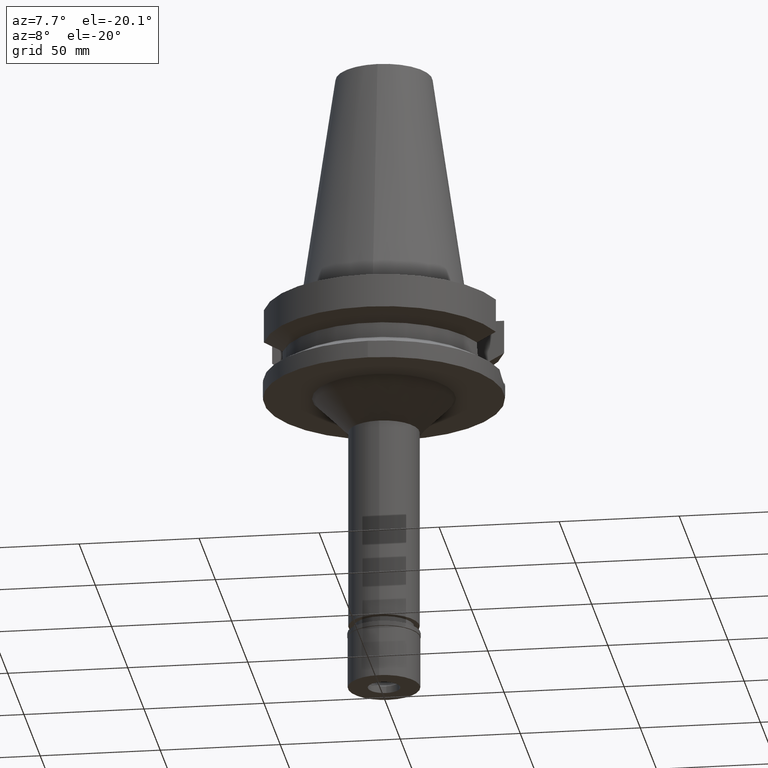
[diagram: clean part render]
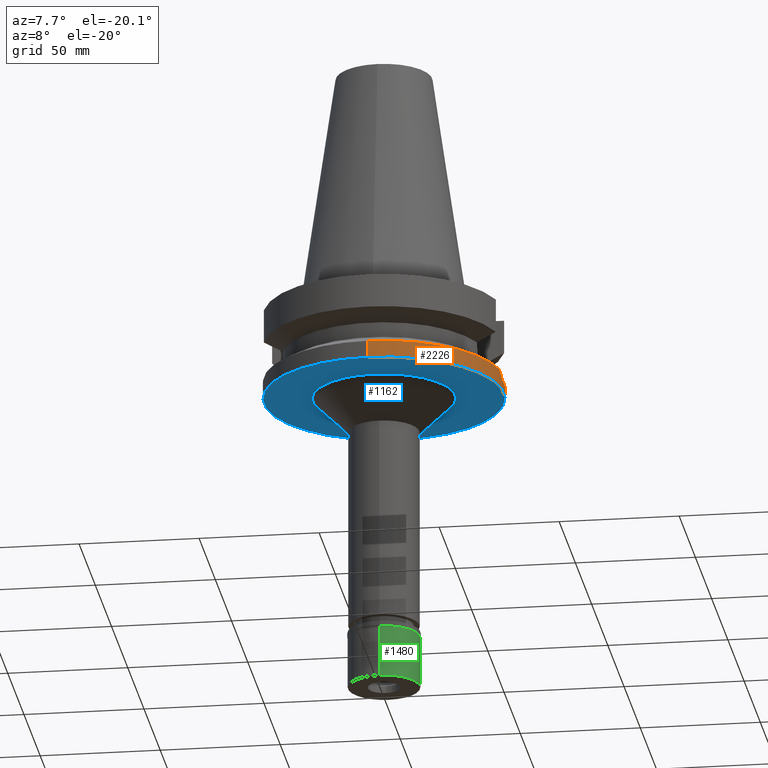
[diagram: same view with three faces highlighted in distinct colors, each labeled with its STEP entity id]
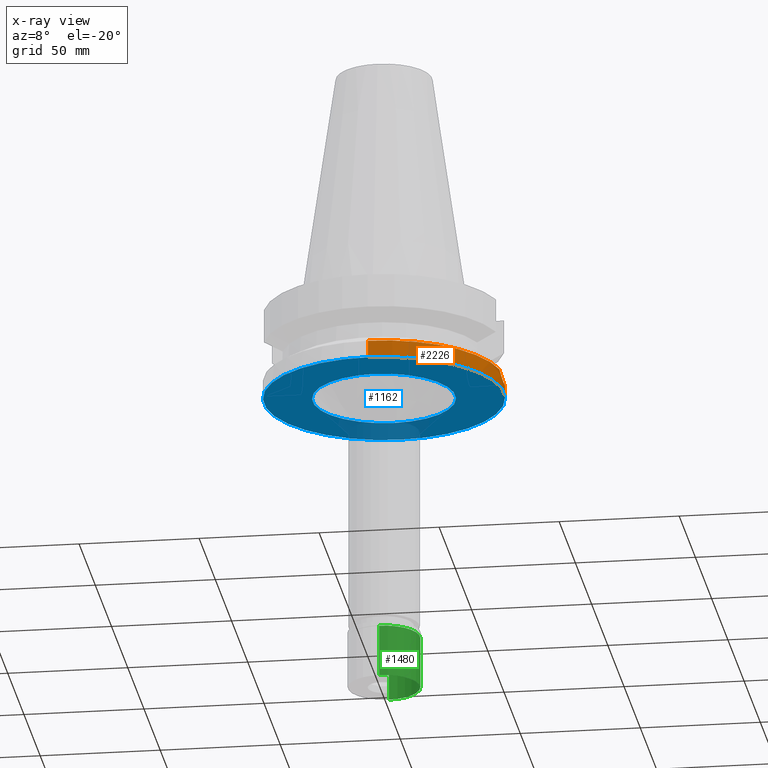
[diagram: x-ray of the same camera — body ghosted, the three highlighted faces saturated]
A machine part, auxiliary view with three faces highlighted in distinct colors.
The next image is the same camera in x-ray (body ghosted, the three faces saturated) — at least one of them is partly hidden behind the body in this view.
Their STEP definitions:

[orange] entity #2226 — the highlighted cylindrical surface (partial cylindrical patch) has radius 50 mm, axis along (0, 0, -1).
#62 = CARTESIAN_POINT ( 'NONE',  ( 49.73403571958615998, -5.148397096495456182, -32.92466732340630386 ) ) ;
#69 = ORIENTED_EDGE ( 'NONE', *, *, #1475, .F. ) ;
#82 = CARTESIAN_POINT ( 'NONE',  ( 49.49360748622444817, -7.117022365926930938, -31.87769826629265779 ) ) ;
#99 = CARTESIAN_POINT ( 'NONE',  ( 49.78971523552871048, -4.580896940923099514, -33.15574469000517865 ) ) ;
#111 = CARTESIAN_POINT ( 'NONE',  ( 0.0000000000000000000, -50.00000000000000000, -30.73730776426999967 ) ) ;
#122 = CARTESIAN_POINT ( 'NONE',  ( 49.98260905406999655, 1.500665618819546410, -33.93573820484640891 ) ) ;
#133 = AXIS2_PLACEMENT_3D ( 'NONE', #1838, #641, #875 ) ;
#154 = CARTESIAN_POINT ( 'NONE',  ( 49.84837068522748638, 3.895670753477376902, -33.39815263642847043 ) ) ;
#194 = VERTEX_POINT ( 'NONE', #2281 ) ;
#196 = B_SPLINE_CURVE_WITH_KNOTS ( 'NONE', 3,
 ( #1277, #1973, #82, #2467, #2031, #1059, #62, #781, #2530, #2021, #338, #3002, #99, #351, #1753, #571, #2001, #826, #814, #1799 ),
 .UNSPECIFIED., .F., .F.,
 ( 4, 2, 2, 2, 1, 1, 1, 1, 2, 2, 2, 4 ),
 ( 0.0000000000000000000, 0.2500000000000019429, 0.3750000000000028866, 0.4375000000000027200, 0.4687500000000024980, 0.4843750000000030531, 0.4921875000000038303, 0.4960937500000040523, 0.4980468750000043854, 0.5000000000000046629, 0.7500000000000023315, 1.000000000000000000 ),
 .UNSPECIFIED. ) ;
#244 = VERTEX_POINT ( 'NONE', #2814 ) ;
#323 = VERTEX_POINT ( 'NONE', #3101 ) ;
#338 = CARTESIAN_POINT ( 'NONE',  ( 49.78562820799414368, -4.625197376536470451, -33.13877319685349221 ) ) ;
#351 = CARTESIAN_POINT ( 'NONE',  ( 49.79052572488830464, -4.572062755272113144, -33.15911172846682575 ) ) ;
#391 = FACE_OUTER_BOUND ( 'NONE', #2268, .T. ) ;
#400 = CARTESIAN_POINT ( 'NONE',  ( 49.93043543702999898, 2.648726358764227129, -33.73005955319694493 ) ) ;
#434 = CIRCLE ( 'NONE', #793, 50.00000000000000000 ) ;
#455 = DIRECTION ( 'NONE',  ( 0.0000000000000000000, 1.000000000000000000, 0.0000000000000000000 ) ) ;
#492 = CARTESIAN_POINT ( 'NONE',  ( 0.0000000000000000000, 50.00000000000000000, -30.73730776426999967 ) ) ;
#571 = CARTESIAN_POINT ( 'NONE',  ( 49.86088866506666051, -3.802344464100822385, -33.45151161015256491 ) ) ;
#584 = VERTEX_POINT ( 'NONE', #111 ) ;
#592 = CIRCLE ( 'NONE', #133, 50.00000000000000000 ) ;
#595 = DIRECTION ( 'NONE',  ( 0.0000000000000000000, -1.000000000000000000, 0.0000000000000000000 ) ) ;
#641 = DIRECTION ( 'NONE',  ( 0.0000000000000000000, 0.0000000000000000000, 1.000000000000000000 ) ) ;
#659 = DIRECTION ( 'NONE',  ( 0.0000000000000000000, 0.0000000000000000000, -1.000000000000000000 ) ) ;
#714 = CARTESIAN_POINT ( 'NONE',  ( 50.00000025974999573, 1.773533494524999800E-14, -34.00000114470000057 ) ) ;
#746 = CARTESIAN_POINT ( 'NONE',  ( 49.49360244391019137, 7.117060693570753216, -31.87766899436991608 ) ) ;
#781 = CARTESIAN_POINT ( 'NONE',  ( 49.75680721493095149, -4.924372200038003022, -33.01927248172847840 ) ) ;
#793 = AXIS2_PLACEMENT_3D ( 'NONE', #2084, #659, #455 ) ;
#814 = CARTESIAN_POINT ( 'NONE',  ( 50.00000025974999573, -0.7410656247012755715, -33.99999999999999289 ) ) ;
#826 = CARTESIAN_POINT ( 'NONE',  ( 49.98261131041458327, -1.500624885913280915, -33.93573978233207100 ) ) ;
#853 = CYLINDRICAL_SURFACE ( 'NONE', #2573, 50.00000000000000000 ) ;
#858 = CARTESIAN_POINT ( 'NONE',  ( 49.26250064874000145, 8.556052234130000045, -30.73730776426999967 ) ) ;
#875 = DIRECTION ( 'NONE',  ( 0.0000000000000000000, -1.000000000000000000, 0.0000000000000000000 ) ) ;
#888 = CARTESIAN_POINT ( 'NONE',  ( 49.79885500147747024, 4.480269389595494367, -33.19370440293435109 ) ) ;
#906 = CARTESIAN_POINT ( 'NONE',  ( 50.00000025974999573, 0.7410749816402011358, -34.00000000000000000 ) ) ;
#935 = CARTESIAN_POINT ( 'NONE',  ( 0.0000000000000000000, -50.00000000000000000, -38.00000000000000000 ) ) ;
#1002 = EDGE_CURVE ( 'NONE', #244, #3093, #434, .T. ) ;
#1046 = LINE ( 'NONE', #2010, #1395 ) ;
#1059 = CARTESIAN_POINT ( 'NONE',  ( 49.71771244287386793, -5.301720186609951035, -32.85659238541509808 ) ) ;
#1151 = DIRECTION ( 'NONE',  ( 0.0000000000000000000, 0.0000000000000000000, -1.000000000000000000 ) ) ;
#1223 = ORIENTED_EDGE ( 'NONE', *, *, #1581, .T. ) ;
#1277 = CARTESIAN_POINT ( 'NONE',  ( 49.26250064874000145, -8.556052234130000045, -30.73730776426999967 ) ) ;
#1363 = CARTESIAN_POINT ( 'NONE',  ( 49.90869642993001065, 3.032807478869417039, -33.64331436781977658 ) ) ;
#1395 = VECTOR ( 'NONE', #2848, 1000.000000000000000 ) ;
#1404 = CARTESIAN_POINT ( 'NONE',  ( 49.26250064874000145, 8.556052234130000045, -30.73730776426999967 ) ) ;
#1456 = CARTESIAN_POINT ( 'NONE',  ( 49.73972721059514157, 5.127761864558977756, -32.94800215649712527 ) ) ;
#1458 = DIRECTION ( 'NONE',  ( 0.0000000000000000000, 2.152361642122000014E-14, -1.000000000000000000 ) ) ;
#1475 = EDGE_CURVE ( 'NONE', #244, #323, #2674, .T. ) ;
#1519 = ORIENTED_EDGE ( 'NONE', *, *, #1679, .T. ) ;
#1581 = EDGE_CURVE ( 'NONE', #584, #2718, #1046, .T. ) ;
#1640 = EDGE_CURVE ( 'NONE', #2718, #323, #592, .T. ) ;
#1679 = EDGE_CURVE ( 'NONE', #194, #584, #2222, .T. ) ;
#1718 = AXIS2_PLACEMENT_3D ( 'NONE', #2829, #1151, #2335 ) ;
#1753 = CARTESIAN_POINT ( 'NONE',  ( 49.79078946305824616, -4.569185635567651893, -33.16020745300446038 ) ) ;
#1799 = CARTESIAN_POINT ( 'NONE',  ( 50.00000025974999573, 1.773533494524999800E-14, -34.00000114470000057 ) ) ;
#1830 = CARTESIAN_POINT ( 'NONE',  ( 49.82078931996939275, 4.230072290458671169, -33.28453423722757520 ) ) ;
#1838 = CARTESIAN_POINT ( 'NONE',  ( 0.0000000000000000000, 2.628581889689999696E-14, -38.00000000000000000 ) ) ;
#1857 = DIRECTION ( 'NONE',  ( 0.0000000000000000000, 0.0000000000000000000, -1.000000000000000000 ) ) ;
#1866 = CARTESIAN_POINT ( 'NONE',  ( 49.79509525718312091, 4.521911686861478152, -33.17809616899173619 ) ) ;
#1939 = CARTESIAN_POINT ( 'NONE',  ( 49.38719044869513652, 7.838135701716594461, -31.37800184670784631 ) ) ;
#1973 = CARTESIAN_POINT ( 'NONE',  ( 49.38719230600825227, -7.838125008021568974, -31.37801139013916796 ) ) ;
#2001 = CARTESIAN_POINT ( 'NONE',  ( 49.91305551307291211, -3.031270826377053140, -33.66153124149426645 ) ) ;
#2006 = EDGE_CURVE ( 'NONE', #194, #2726, #196, .T. ) ;
#2010 = CARTESIAN_POINT ( 'NONE',  ( 0.0000000000000000000, -50.00000000000000000, -30.73730776426999967 ) ) ;
#2021 = CARTESIAN_POINT ( 'NONE',  ( 49.77979861140840256, -4.687619708070342561, -33.11458520032999076 ) ) ;
#2031 = CARTESIAN_POINT ( 'NONE',  ( 49.66531577328977676, -5.772453008276097641, -32.63570655766154260 ) ) ;
#2084 = CARTESIAN_POINT ( 'NONE',  ( 0.0000000000000000000, 0.0000000000000000000, -30.73730776426999967 ) ) ;
#2089 = CARTESIAN_POINT ( 'NONE',  ( 49.86956621715001603, 3.608177968357706877, -33.48463145063210789 ) ) ;
#2096 = ORIENTED_EDGE ( 'NONE', *, *, #2006, .F. ) ;
#2108 = VECTOR ( 'NONE', #1458, 1000.000000000000000 ) ;
#2128 = B_SPLINE_CURVE_WITH_KNOTS ( 'NONE', 3,
 ( #3096, #906, #122, #400, #1363, #2089, #154, #1830, #3076, #888, #1866, #2845, #2636, #2956, #1456, #2155, #746, #1939, #1404 ),
 .UNSPECIFIED., .F., .F.,
 ( 4, 2, 2, 1, 1, 1, 1, 1, 2, 2, 2, 4 ),
 ( 0.0000000000000000000, 0.2499999999999918954, 0.3749999999999877875, 0.4374999999999857891, 0.4687499999999846234, 0.4843749999999845124, 0.4921874999999845124, 0.4960937499999848455, 0.4980468749999847344, 0.4999999999999846789, 0.7499999999999923395, 1.000000000000000000 ),
 .UNSPECIFIED. ) ;
#2155 = CARTESIAN_POINT ( 'NONE',  ( 49.66987082486018323, 5.762061220135041850, -32.66234491596527789 ) ) ;
#2222 = CIRCLE ( 'NONE', #1718, 50.00000000000000000 ) ;
#2226 = ADVANCED_FACE ( 'NONE', ( #391 ), #853, .T. ) ;
#2244 = ORIENTED_EDGE ( 'NONE', *, *, #1640, .T. ) ;
#2268 = EDGE_LOOP ( 'NONE', ( #1519, #1223, #2244, #69, #3005, #3084, #2096 ) ) ;
#2281 = CARTESIAN_POINT ( 'NONE',  ( 49.26250064874000145, -8.556052234130000045, -30.73730776426999967 ) ) ;
#2335 = DIRECTION ( 'NONE',  ( 0.9852500129747439050, -0.1711210446826074982, 0.0000000000000000000 ) ) ;
#2467 = CARTESIAN_POINT ( 'NONE',  ( 49.62581554097071290, -6.100699782661163084, -32.46623685348927069 ) ) ;
#2530 = CARTESIAN_POINT ( 'NONE',  ( 49.76776460767242583, -4.813848196824465298, -33.06469792030519272 ) ) ;
#2573 = AXIS2_PLACEMENT_3D ( 'NONE', #2780, #1857, #595 ) ;
#2636 = CARTESIAN_POINT ( 'NONE',  ( 49.79239168047002551, 4.551645640521863712, -33.16686574697492063 ) ) ;
#2674 = LINE ( 'NONE', #492, #2108 ) ;
#2718 = VERTEX_POINT ( 'NONE', #935 ) ;
#2726 = VERTEX_POINT ( 'NONE', #714 ) ;
#2780 = CARTESIAN_POINT ( 'NONE',  ( 0.0000000000000000000, 2.628581889689999696E-14, 114.6400000000000006 ) ) ;
#2814 = CARTESIAN_POINT ( 'NONE',  ( 0.0000000000000000000, 50.00000000000000000, -30.73730776426999967 ) ) ;
#2829 = CARTESIAN_POINT ( 'NONE',  ( 0.0000000000000000000, 0.0000000000000000000, -30.73730776426999967 ) ) ;
#2845 = CARTESIAN_POINT ( 'NONE',  ( 49.79347438492522571, 4.539752812153897921, -33.17136368396872115 ) ) ;
#2848 = DIRECTION ( 'NONE',  ( 0.0000000000000000000, -2.250196262218000018E-14, -1.000000000000000000 ) ) ;
#2956 = CARTESIAN_POINT ( 'NONE',  ( 49.79170874925402757, 4.559128567793260700, -33.16402800634461556 ) ) ;
#3002 = CARTESIAN_POINT ( 'NONE',  ( 49.78849615496642400, -4.594160770999257792, -33.15068097424745019 ) ) ;
#3005 = ORIENTED_EDGE ( 'NONE', *, *, #1002, .T. ) ;
#3076 = CARTESIAN_POINT ( 'NONE',  ( 49.80628532616985638, 4.396934166566434321, -33.22451764729858326 ) ) ;
#3084 = ORIENTED_EDGE ( 'NONE', *, *, #3108, .F. ) ;
#3093 = VERTEX_POINT ( 'NONE', #858 ) ;
#3096 = CARTESIAN_POINT ( 'NONE',  ( 50.00000025974999573, 1.773533494524999800E-14, -34.00000114470000057 ) ) ;
#3101 = CARTESIAN_POINT ( 'NONE',  ( 0.0000000000000000000, 50.00000000000000000, -38.00000000000000000 ) ) ;
#3108 = EDGE_CURVE ( 'NONE', #2726, #3093, #2128, .T. ) ;

[blue] entity #1162 — the highlighted planar face has unit normal (0, 0, -1).
#16 = CARTESIAN_POINT ( 'NONE',  ( 0.0000000000000000000, 0.0000000000000000000, -38.00000000000000000 ) ) ;
#46 = ORIENTED_EDGE ( 'NONE', *, *, #1526, .F. ) ;
#130 = AXIS2_PLACEMENT_3D ( 'NONE', #2398, #499, #1717 ) ;
#133 = AXIS2_PLACEMENT_3D ( 'NONE', #1838, #641, #875 ) ;
#177 = AXIS2_PLACEMENT_3D ( 'NONE', #16, #1419, #1660 ) ;
#291 = DIRECTION ( 'NONE',  ( 0.0000000000000000000, 0.0000000000000000000, -1.000000000000000000 ) ) ;
#323 = VERTEX_POINT ( 'NONE', #3101 ) ;
#499 = DIRECTION ( 'NONE',  ( 0.0000000000000000000, 0.0000000000000000000, 1.000000000000000000 ) ) ;
#592 = CIRCLE ( 'NONE', #133, 50.00000000000000000 ) ;
#641 = DIRECTION ( 'NONE',  ( 0.0000000000000000000, 0.0000000000000000000, 1.000000000000000000 ) ) ;
#756 = FACE_OUTER_BOUND ( 'NONE', #1382, .T. ) ;
#803 = ORIENTED_EDGE ( 'NONE', *, *, #1640, .F. ) ;
#875 = DIRECTION ( 'NONE',  ( 0.0000000000000000000, -1.000000000000000000, 0.0000000000000000000 ) ) ;
#891 = VERTEX_POINT ( 'NONE', #1661 ) ;
#895 = ORIENTED_EDGE ( 'NONE', *, *, #1308, .F. ) ;
#935 = CARTESIAN_POINT ( 'NONE',  ( 0.0000000000000000000, -50.00000000000000000, -38.00000000000000000 ) ) ;
#960 = FACE_BOUND ( 'NONE', #2283, .T. ) ;
#1162 = ADVANCED_FACE ( 'NONE', ( #756, #960 ), #1269, .T. ) ;
#1269 = PLANE ( 'NONE',  #1658 ) ;
#1308 = EDGE_CURVE ( 'NONE', #891, #1899, #2719, .T. ) ;
#1309 = AXIS2_PLACEMENT_3D ( 'NONE', #1406, #1644, #2318 ) ;
#1382 = EDGE_LOOP ( 'NONE', ( #46, #803 ) ) ;
#1406 = CARTESIAN_POINT ( 'NONE',  ( 0.0000000000000000000, 0.0000000000000000000, -38.00000000000000000 ) ) ;
#1419 = DIRECTION ( 'NONE',  ( 0.0000000000000000000, 0.0000000000000000000, -1.000000000000000000 ) ) ;
#1526 = EDGE_CURVE ( 'NONE', #323, #2718, #2941, .T. ) ;
#1640 = EDGE_CURVE ( 'NONE', #2718, #323, #592, .T. ) ;
#1644 = DIRECTION ( 'NONE',  ( 0.0000000000000000000, 0.0000000000000000000, -1.000000000000000000 ) ) ;
#1658 = AXIS2_PLACEMENT_3D ( 'NONE', #2476, #291, #1922 ) ;
#1660 = DIRECTION ( 'NONE',  ( 0.0000000000000000000, -1.000000000000000000, 0.0000000000000000000 ) ) ;
#1661 = CARTESIAN_POINT ( 'NONE',  ( 0.0000000000000000000, -29.75000000000000000, -38.00000000000000000 ) ) ;
#1717 = DIRECTION ( 'NONE',  ( 0.0000000000000000000, 1.000000000000000000, 0.0000000000000000000 ) ) ;
#1838 = CARTESIAN_POINT ( 'NONE',  ( 0.0000000000000000000, 2.628581889689999696E-14, -38.00000000000000000 ) ) ;
#1899 = VERTEX_POINT ( 'NONE', #3126 ) ;
#1922 = DIRECTION ( 'NONE',  ( 0.0000000000000000000, -1.000000000000000000, 0.0000000000000000000 ) ) ;
#2283 = EDGE_LOOP ( 'NONE', ( #3017, #895 ) ) ;
#2318 = DIRECTION ( 'NONE',  ( 0.0000000000000000000, 1.000000000000000000, 0.0000000000000000000 ) ) ;
#2398 = CARTESIAN_POINT ( 'NONE',  ( 0.0000000000000000000, 2.628581889689999696E-14, -38.00000000000000000 ) ) ;
#2476 = CARTESIAN_POINT ( 'NONE',  ( 0.0000000000000000000, 0.0000000000000000000, -38.00000000000000000 ) ) ;
#2512 = EDGE_CURVE ( 'NONE', #1899, #891, #2681, .T. ) ;
#2681 = CIRCLE ( 'NONE', #1309, 29.75000000000000000 ) ;
#2718 = VERTEX_POINT ( 'NONE', #935 ) ;
#2719 = CIRCLE ( 'NONE', #177, 29.75000000000000000 ) ;
#2941 = CIRCLE ( 'NONE', #130, 50.00000000000000000 ) ;
#3017 = ORIENTED_EDGE ( 'NONE', *, *, #2512, .F. ) ;
#3101 = CARTESIAN_POINT ( 'NONE',  ( 0.0000000000000000000, 50.00000000000000000, -38.00000000000000000 ) ) ;
#3126 = CARTESIAN_POINT ( 'NONE',  ( 0.0000000000000000000, 29.75000000000000000, -38.00000000000000000 ) ) ;

[green] entity #1480 — the highlighted cylindrical surface (edge-blend (fillet) strip) has radius 15 mm, axis along (0, 0, -1).
#77 = AXIS2_PLACEMENT_3D ( 'NONE', #562, #359, #608 ) ;
#191 = EDGE_LOOP ( 'NONE', ( #748, #1533, #771, #1885 ) ) ;
#264 = CARTESIAN_POINT ( 'NONE',  ( 0.0000000000000000000, 0.0000000000000000000, 0.0000000000000000000 ) ) ;
#307 = CARTESIAN_POINT ( 'NONE',  ( 0.0000000000000000000, -15.00000000000000000, -2.100000000000000089 ) ) ;
#359 = DIRECTION ( 'NONE',  ( 0.0000000000000000000, 0.0000000000000000000, 1.000000000000000000 ) ) ;
#382 = CARTESIAN_POINT ( 'NONE',  ( 0.0000000000000000000, 15.00000000000000000, -2.100000000000000089 ) ) ;
#501 = LINE ( 'NONE', #516, #2016 ) ;
#516 = CARTESIAN_POINT ( 'NONE',  ( 0.0000000000000000000, 15.00000000000000000, -2.100000000000000089 ) ) ;
#553 = DIRECTION ( 'NONE',  ( 0.0000000000000000000, 0.0000000000000000000, -1.000000000000000000 ) ) ;
#562 = CARTESIAN_POINT ( 'NONE',  ( 0.0000000000000000000, 0.0000000000000000000, -23.80000000000000071 ) ) ;
#608 = DIRECTION ( 'NONE',  ( 0.0000000000000000000, -1.000000000000000000, 0.0000000000000000000 ) ) ;
#748 = ORIENTED_EDGE ( 'NONE', *, *, #1855, .T. ) ;
#771 = ORIENTED_EDGE ( 'NONE', *, *, #1235, .T. ) ;
#838 = CIRCLE ( 'NONE', #77, 15.00000000000000000 ) ;
#1159 = VECTOR ( 'NONE', #553, 1000.000000000000000 ) ;
#1164 = CARTESIAN_POINT ( 'NONE',  ( 0.0000000000000000000, -15.00000000000000000, -23.80000000000000071 ) ) ;
#1235 = EDGE_CURVE ( 'NONE', #1397, #1594, #838, .T. ) ;
#1242 = DIRECTION ( 'NONE',  ( 0.0000000000000000000, -1.000000000000000000, 0.0000000000000000000 ) ) ;
#1397 = VERTEX_POINT ( 'NONE', #1164 ) ;
#1480 = ADVANCED_FACE ( 'NONE', ( #2433 ), #2192, .T. ) ;
#1533 = ORIENTED_EDGE ( 'NONE', *, *, #2324, .T. ) ;
#1594 = VERTEX_POINT ( 'NONE', #1597 ) ;
#1597 = CARTESIAN_POINT ( 'NONE',  ( 0.0000000000000000000, 15.00000000000000000, -23.80000000000000071 ) ) ;
#1855 = EDGE_CURVE ( 'NONE', #3000, #1918, #2524, .T. ) ;
#1885 = ORIENTED_EDGE ( 'NONE', *, *, #2120, .F. ) ;
#1903 = CARTESIAN_POINT ( 'NONE',  ( 0.0000000000000000000, 0.0000000000000000000, -2.100000000000000089 ) ) ;
#1918 = VERTEX_POINT ( 'NONE', #2656 ) ;
#1950 = LINE ( 'NONE', #307, #1159 ) ;
#2013 = DIRECTION ( 'NONE',  ( 0.0000000000000000000, 0.0000000000000000000, -1.000000000000000000 ) ) ;
#2016 = VECTOR ( 'NONE', #2013, 1000.000000000000000 ) ;
#2120 = EDGE_CURVE ( 'NONE', #3000, #1594, #501, .T. ) ;
#2165 = DIRECTION ( 'NONE',  ( 0.0000000000000000000, 0.0000000000000000000, -1.000000000000000000 ) ) ;
#2192 = CYLINDRICAL_SURFACE ( 'NONE', #2722, 15.00000000000000000 ) ;
#2324 = EDGE_CURVE ( 'NONE', #1918, #1397, #1950, .T. ) ;
#2407 = DIRECTION ( 'NONE',  ( 0.0000000000000000000, 1.000000000000000000, 0.0000000000000000000 ) ) ;
#2433 = FACE_OUTER_BOUND ( 'NONE', #191, .T. ) ;
#2524 = CIRCLE ( 'NONE', #2676, 15.00000000000000000 ) ;
#2656 = CARTESIAN_POINT ( 'NONE',  ( 0.0000000000000000000, -15.00000000000000000, -2.100000000000000089 ) ) ;
#2676 = AXIS2_PLACEMENT_3D ( 'NONE', #1903, #2165, #2407 ) ;
#2689 = DIRECTION ( 'NONE',  ( 0.0000000000000000000, 0.0000000000000000000, -1.000000000000000000 ) ) ;
#2722 = AXIS2_PLACEMENT_3D ( 'NONE', #264, #2689, #1242 ) ;
#3000 = VERTEX_POINT ( 'NONE', #382 ) ;